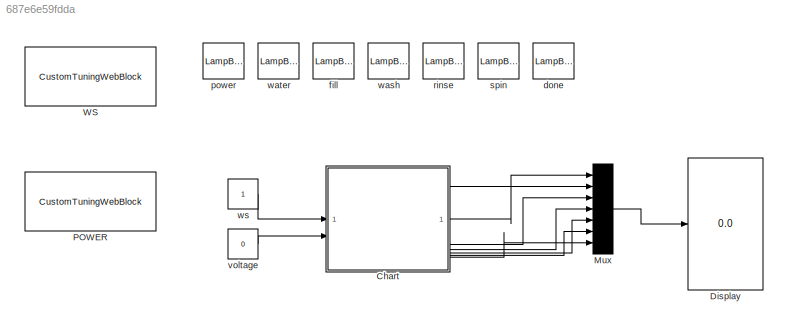
MODEL slx_687e6e59fdda
KIND model
CONFIG AbsTol = auto
CONFIG EnableMultiTasking = off
CONFIG FixedStep = auto
CONFIG MaxStep = auto
CONFIG MinStep = auto
CONFIG RelTol = 1e-3
CONFIG SampleTimeConstraint = Unconstrained
CONFIG SolverName = VariableStepAuto
CONFIG StartTime = 0.0
CONFIG StopTime = inf
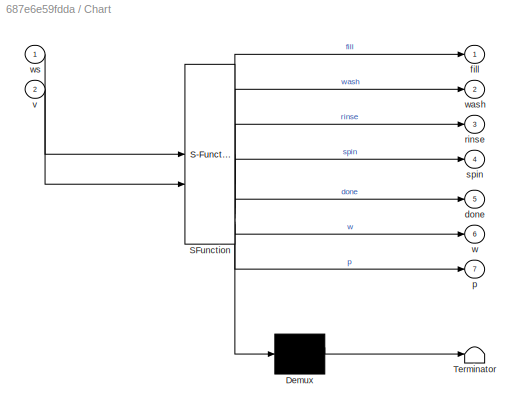
BLOCK [SubSystem] Chart
  ErrorFcn = Stateflow.Translate.translate
  PermitHierarchicalResolution = ExplicitOnly
  SFBlockType = Chart
  TreatAsAtomicUnit = on
BLOCK [Demux] Chart/ Demux 
  Outputs = 1
BLOCK [S-Function] Chart/ SFunction 
  EnableBusSupport = on
  FunctionName = sf_sfun
  PortCounts = [2 8]
  SFcnIsStateOwnerBlock = off
  SFunctionDeploymentMode = off
  Tag = Stateflow S-Function 3
BLOCK [Terminator] Chart/ Terminator 
BLOCK [Outport] Chart/done
  Port = 5
BLOCK [Outport] Chart/fill
BLOCK [Outport] Chart/p
  Port = 7
BLOCK [Outport] Chart/rinse
  Port = 3
BLOCK [Outport] Chart/spin
  Port = 4
BLOCK [Inport] Chart/v
  Port = 2
BLOCK [Outport] Chart/w
  Port = 6
BLOCK [Outport] Chart/wash
  Port = 2
BLOCK [Inport] Chart/ws
BLOCK [Display] Display
  Decimation = 1
BLOCK [Mux] Mux
  DisplayOption = bar
  Inputs = 7
BLOCK [CustomTuningWebBlock] POWER
  Configuration = {"components":[{"name":"CustomSwitchStateComponent","settings":{"position":[0,0,1,1],"states":[{"HitRegion":{"position":[0,0,0.5,1]},"Image":{"position":[0.13,0,1,0.75],"size":[1,0.75],"src":"data:image\/svg+xml;base64,PHN2ZyB4bWxucz0iaHR0cDovL3d3dy53My5vcmcvMjAwMC9zdmciIHhtbG5zOnhsaW5rPSJodHRwOi8vd3d3LnczLm9yZy8xOTk5L3hsaW5rIiB2aWV3Qm94PSIwIDAgNzUgMjQuOCI+PGRlZnM+PHN0eWxlPi5jbHMtMXtmaWxsOnVybCgjc...<+8988ch>
  LabelPosition = Hide
  ShowInitialText = on
BLOCK [CustomTuningWebBlock] WS
  Configuration = {"components":[{"name":"CustomSwitchStateComponent","settings":{"position":[0,0,1,1],"states":[{"HitRegion":{"position":[0,0,0.5,1]},"Image":{"position":[0.13,0,1,0.75],"size":[1,0.75],"src":"data:image\/svg+xml;base64,PHN2ZyB4bWxucz0iaHR0cDovL3d3dy53My5vcmcvMjAwMC9zdmciIHhtbG5zOnhsaW5rPSJodHRwOi8vd3d3LnczLm9yZy8xOTk5L3hsaW5rIiB2aWV3Qm94PSIwIDAgNzUgMjQuOCI+PGRlZnM+PHN0eWxlPi5jbHMtMXtmaWxsOnVybCgjc...<+8988ch>
  LabelPosition = Hide
  ShowInitialText = on
BLOCK [LampBlock] done
  LabelPosition = Hide
BLOCK [LampBlock] fill
  LabelPosition = Hide
BLOCK [LampBlock] power
  LabelPosition = Hide
BLOCK [LampBlock] rinse
  LabelPosition = Hide
BLOCK [LampBlock] spin
  LabelPosition = Hide
BLOCK [Constant] voltage
  Value = 0
BLOCK [LampBlock] wash
  LabelPosition = Hide
BLOCK [LampBlock] water
  LabelPosition = Hide
BLOCK [Constant] ws
LINE Chart:1 -> Mux:1
LINE Chart:2 -> Mux:2
LINE Chart:3 -> Mux:3
LINE Chart:4 -> Mux:4
LINE Chart:5 -> Mux:5
LINE Chart:6 -> Mux:6
LINE Chart:7 -> Mux:7
LINE Mux:1 -> Display:1
LINE voltage:1 -> Chart:2
LINE ws:1 -> Chart:1
CHART Chart states=10 transitions=13
  STATE_LABEL 'Power_OFF1\np=0;\ndone=0;'
  STATE_LABEL 'Power_ON\np=1;'
  STATE_LABEL 'Water_low\nw=0'
  STATE_LABEL 'Water_ch'
  STATE_LABEL 'Water_H\nw=1;'
  STATE_LABEL 'Done\nentry:\nspin=0;\nduring:\ndone=1;'
  STATE_LABEL 'Fill\nentry:\nduring:\nfill=1;'
  STATE_LABEL 'Rinse\nentry:\nwash=0;\nduring:\nrinse=1;'
  STATE_LABEL 'Wash\nentry:\nfill=0;\nduring:\nwash=1;\n'
  STATE_LABEL 'Spin\nentry:\nrinse=0;\nduring:\nspin=1;'
CHART  states=0 transitions=0
